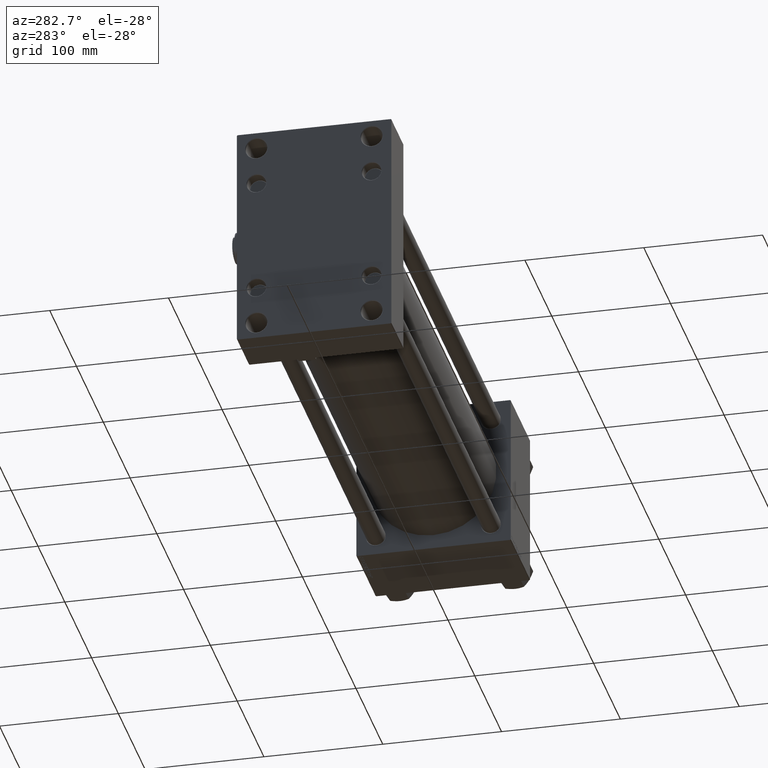
[diagram: clean part render]
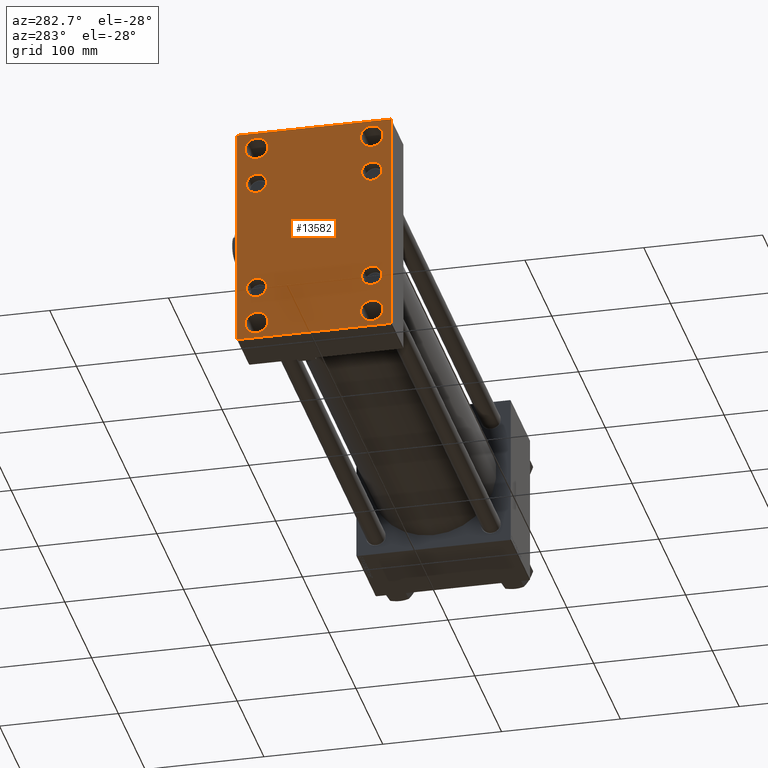
[diagram: same view with one face highlighted and labeled with its STEP entity id]
A machine part, auxiliary view. The second image highlights one B-rep face of the part: STEP entity #13582.
In plain terms, the highlighted planar face has unit normal (-1, 0, 0).
Its self-contained STEP definition (entity closure, byte-faithful):
#382 = CARTESIAN_POINT ( 'NONE',  ( 0.000000000000000000, 48.45000000000000995, 56.94999999999999574 ) ) ;
#688 = AXIS2_PLACEMENT_3D ( 'NONE', #50420, #50963, #16377 ) ;
#1030 = CARTESIAN_POINT ( 'NONE',  ( 0.000000000000000000, 64.50000000000002842, -95.00000000000002842 ) ) ;
#1153 = CIRCLE ( 'NONE', #32120, 8.499999999999980460 ) ;
#1318 = ORIENTED_EDGE ( 'NONE', *, *, #43432, .T. ) ;
#1344 = CARTESIAN_POINT ( 'NONE',  ( 0.000000000000000000, 65.00000000000002842, 94.99999999999997158 ) ) ;
#1445 = CARTESIAN_POINT ( 'NONE',  ( 0.000000000000000000, -64.49999999999988631, -95.00000000000008527 ) ) ;
#1721 = CARTESIAN_POINT ( 'NONE',  ( 0.000000000000000000, -64.99999999999998579, -94.50000000000004263 ) ) ;
#2082 = EDGE_CURVE ( 'NONE', #53615, #8556, #18777, .T. ) ;
#2118 = CIRCLE ( 'NONE', #6569, 9.499999999999896971 ) ;
#2193 = AXIS2_PLACEMENT_3D ( 'NONE', #26166, #33661, #51388 ) ;
#2512 = CARTESIAN_POINT ( 'NONE',  ( 0.000000000000000000, 48.45000000000000995, -39.95000000000003126 ) ) ;
#2588 = ORIENTED_EDGE ( 'NONE', *, *, #25897, .T. ) ;
#2801 = ORIENTED_EDGE ( 'NONE', *, *, #28862, .T. ) ;
#2861 = ORIENTED_EDGE ( 'NONE', *, *, #21218, .F. ) ;
#2901 = EDGE_CURVE ( 'NONE', #53233, #32737, #11734, .T. ) ;
#3055 = DIRECTION ( 'NONE',  ( 0.000000000000000000, -1.000000000000000000, -4.270088556250601699E-16 ) ) ;
#3323 = ORIENTED_EDGE ( 'NONE', *, *, #47860, .T. ) ;
#3642 = EDGE_CURVE ( 'NONE', #39699, #12663, #1153, .T. ) ;
#3644 = EDGE_CURVE ( 'NONE', #12240, #12367, #8241, .T. ) ;
#4142 = EDGE_CURVE ( 'NONE', #48170, #48158, #8247, .T. ) ;
#4210 = PLANE ( 'NONE',  #20888 ) ;
#4649 = CARTESIAN_POINT ( 'NONE',  ( 0.000000000000000000, -48.50000000000000000, 81.00000000000000000 ) ) ;
#5040 = VERTEX_POINT ( 'NONE', #21473 ) ;
#5719 = CIRCLE ( 'NONE', #2193, 9.499999999999896971 ) ;
#5873 = ORIENTED_EDGE ( 'NONE', *, *, #2082, .T. ) ;
#5982 = VECTOR ( 'NONE', #26096, 1000.000000000000000 ) ;
#6167 = EDGE_CURVE ( 'NONE', #8556, #53615, #2118, .T. ) ;
#6254 = DIRECTION ( 'NONE',  ( 1.000000000000000000, -0.000000000000000000, 0.000000000000000000 ) ) ;
#6510 = ORIENTED_EDGE ( 'NONE', *, *, #6167, .T. ) ;
#6569 = AXIS2_PLACEMENT_3D ( 'NONE', #40299, #36682, #53313 ) ;
#6757 = CIRCLE ( 'NONE', #47557, 9.499999999999896971 ) ;
#6786 = VERTEX_POINT ( 'NONE', #37089 ) ;
#6838 = DIRECTION ( 'NONE',  ( 1.000000000000000000, -0.000000000000000000, 0.000000000000000000 ) ) ;
#7245 = CARTESIAN_POINT ( 'NONE',  ( 0.000000000000000000, 48.45000000000000995, -48.45000000000001705 ) ) ;
#7332 = CARTESIAN_POINT ( 'NONE',  ( 0.000000000000000000, -64.99999999999998579, 94.99999999999995737 ) ) ;
#7781 = ORIENTED_EDGE ( 'NONE', *, *, #12973, .T. ) ;
#8241 = CIRCLE ( 'NONE', #53375, 8.499999999999980460 ) ;
#8247 = LINE ( 'NONE', #42027, #33886 ) ;
#8463 = DIRECTION ( 'NONE',  ( 1.000000000000000000, -0.000000000000000000, 0.000000000000000000 ) ) ;
#8556 = VERTEX_POINT ( 'NONE', #39216 ) ;
#8569 = CARTESIAN_POINT ( 'NONE',  ( 0.000000000000000000, -48.44999999999999574, 56.95000000000000995 ) ) ;
#8650 = FACE_BOUND ( 'NONE', #50332, .T. ) ;
#8685 = LINE ( 'NONE', #43001, #5982 ) ;
#8836 = ORIENTED_EDGE ( 'NONE', *, *, #37484, .T. ) ;
#9531 = CARTESIAN_POINT ( 'NONE',  ( 0.000000000000000000, 48.45000000000000995, 39.95000000000003126 ) ) ;
#9697 = DIRECTION ( 'NONE',  ( 0.000000000000000000, 0.000000000000000000, 1.000000000000000000 ) ) ;
#10176 = CARTESIAN_POINT ( 'NONE',  ( 0.000000000000000000, -48.44999999999999574, -56.95000000000000995 ) ) ;
#10445 = VERTEX_POINT ( 'NONE', #41292 ) ;
#10702 = VERTEX_POINT ( 'NONE', #53685 ) ;
#10725 = CARTESIAN_POINT ( 'NONE',  ( 0.000000000000000000, -48.44999999999999574, -39.95000000000004547 ) ) ;
#10851 = DIRECTION ( 'NONE',  ( 0.000000000000000000, 0.000000000000000000, 1.000000000000000000 ) ) ;
#11006 = CIRCLE ( 'NONE', #33127, 8.499999999999980460 ) ;
#11133 = DIRECTION ( 'NONE',  ( 0.000000000000000000, 0.000000000000000000, 1.000000000000000000 ) ) ;
#11280 = CIRCLE ( 'NONE', #29822, 9.499999999999896971 ) ;
#11522 = CARTESIAN_POINT ( 'NONE',  ( 0.000000000000000000, 48.50000000000000000, 81.00000000000000000 ) ) ;
#11710 = ORIENTED_EDGE ( 'NONE', *, *, #4142, .T. ) ;
#11734 = CIRCLE ( 'NONE', #23238, 8.499999999999980460 ) ;
#11781 = DIRECTION ( 'NONE',  ( 1.000000000000000000, -0.000000000000000000, 0.000000000000000000 ) ) ;
#11940 = ORIENTED_EDGE ( 'NONE', *, *, #13670, .T. ) ;
#11982 = ORIENTED_EDGE ( 'NONE', *, *, #33273, .T. ) ;
#12159 = CIRCLE ( 'NONE', #50162, 9.499999999999896971 ) ;
#12240 = VERTEX_POINT ( 'NONE', #10176 ) ;
#12367 = VERTEX_POINT ( 'NONE', #10725 ) ;
#12503 = DIRECTION ( 'NONE',  ( -1.000000000000000000, 0.000000000000000000, -0.000000000000000000 ) ) ;
#12619 = VECTOR ( 'NONE', #3055, 1000.000000000000000 ) ;
#12663 = VERTEX_POINT ( 'NONE', #2512 ) ;
#12781 = FACE_BOUND ( 'NONE', #21241, .T. ) ;
#12973 = EDGE_CURVE ( 'NONE', #13221, #39363, #12159, .T. ) ;
#13068 = FACE_BOUND ( 'NONE', #13527, .T. ) ;
#13221 = VERTEX_POINT ( 'NONE', #40609 ) ;
#13336 = FACE_BOUND ( 'NONE', #27647, .T. ) ;
#13527 = EDGE_LOOP ( 'NONE', ( #3323, #17146 ) ) ;
#13582 = ADVANCED_FACE ( 'NONE', ( #13336, #13068, #37435, #25524, #16423, #8650, #41878, #12781, #42968 ), #4210, .T. ) ;
#13670 = EDGE_CURVE ( 'NONE', #26255, #27963, #6757, .T. ) ;
#14376 = ORIENTED_EDGE ( 'NONE', *, *, #2901, .T. ) ;
#14688 = VECTOR ( 'NONE', #44174, 1000.000000000000114 ) ;
#14991 = EDGE_CURVE ( 'NONE', #53777, #6786, #34161, .T. ) ;
#15233 = DIRECTION ( 'NONE',  ( 0.000000000000000000, -1.000000000000000000, -1.067522139062650425E-16 ) ) ;
#15291 = DIRECTION ( 'NONE',  ( 1.000000000000000000, -0.000000000000000000, 0.000000000000000000 ) ) ;
#15303 = ORIENTED_EDGE ( 'NONE', *, *, #14991, .T. ) ;
#15418 = DIRECTION ( 'NONE',  ( 0.000000000000000000, 0.000000000000000000, 1.000000000000000000 ) ) ;
#16229 = CIRCLE ( 'NONE', #39211, 8.499999999999980460 ) ;
#16233 = DIRECTION ( 'NONE',  ( 0.000000000000000000, 0.000000000000000000, 1.000000000000000000 ) ) ;
#16377 = DIRECTION ( 'NONE',  ( 0.000000000000000000, 0.000000000000000000, 1.000000000000000000 ) ) ;
#16423 = FACE_BOUND ( 'NONE', #21016, .T. ) ;
#16946 = CARTESIAN_POINT ( 'NONE',  ( 0.000000000000000000, 0.000000000000000000, 0.000000000000000000 ) ) ;
#17146 = ORIENTED_EDGE ( 'NONE', *, *, #36102, .T. ) ;
#17976 = EDGE_CURVE ( 'NONE', #6786, #53777, #47932, .T. ) ;
#18544 = DIRECTION ( 'NONE',  ( 0.000000000000000000, 0.000000000000000000, -1.000000000000000000 ) ) ;
#18777 = CIRCLE ( 'NONE', #53297, 9.499999999999896971 ) ;
#18807 = EDGE_LOOP ( 'NONE', ( #23230, #2801, #32322, #11710, #2861, #39985, #29483, #1318 ) ) ;
#18992 = DIRECTION ( 'NONE',  ( 0.000000000000000000, 0.000000000000000000, 1.000000000000000000 ) ) ;
#20352 = EDGE_CURVE ( 'NONE', #32737, #53233, #16229, .T. ) ;
#20566 = DIRECTION ( 'NONE',  ( -0.000000000000000000, 0.000000000000000000, 1.000000000000000000 ) ) ;
#20888 = AXIS2_PLACEMENT_3D ( 'NONE', #16946, #12503, #20566 ) ;
#21016 = EDGE_LOOP ( 'NONE', ( #15303, #35414 ) ) ;
#21218 = EDGE_CURVE ( 'NONE', #53145, #48158, #45544, .T. ) ;
#21241 = EDGE_LOOP ( 'NONE', ( #52941, #14376 ) ) ;
#21473 = CARTESIAN_POINT ( 'NONE',  ( 0.000000000000000000, 64.50000000000000000, 94.99999999999997158 ) ) ;
#21552 = DIRECTION ( 'NONE',  ( 1.000000000000000000, -0.000000000000000000, 0.000000000000000000 ) ) ;
#22130 = LINE ( 'NONE', #1344, #49824 ) ;
#22584 = CARTESIAN_POINT ( 'NONE',  ( 0.000000000000000000, -48.44999999999999574, 48.45000000000003126 ) ) ;
#23229 = EDGE_CURVE ( 'NONE', #45934, #48170, #23571, .T. ) ;
#23230 = ORIENTED_EDGE ( 'NONE', *, *, #23609, .T. ) ;
#23238 = AXIS2_PLACEMENT_3D ( 'NONE', #45869, #6838, #16233 ) ;
#23571 = LINE ( 'NONE', #54277, #12619 ) ;
#23583 = DIRECTION ( 'NONE',  ( 1.000000000000000000, -0.000000000000000000, 0.000000000000000000 ) ) ;
#23609 = EDGE_CURVE ( 'NONE', #42738, #34965, #22130, .T. ) ;
#24168 = ORIENTED_EDGE ( 'NONE', *, *, #3642, .T. ) ;
#24252 = DIRECTION ( 'NONE',  ( 0.000000000000000000, 0.7071067811865672237, -0.7071067811865279218 ) ) ;
#24564 = CIRCLE ( 'NONE', #38687, 8.499999999999980460 ) ;
#25524 = FACE_BOUND ( 'NONE', #36798, .T. ) ;
#25897 = EDGE_CURVE ( 'NONE', #12367, #12240, #11006, .T. ) ;
#26096 = DIRECTION ( 'NONE',  ( -0.000000000000000000, 0.7071067811865573427, 0.7071067811865378028 ) ) ;
#26166 = CARTESIAN_POINT ( 'NONE',  ( 0.000000000000000000, -48.50000000000000000, -81.00000000000001421 ) ) ;
#26255 = VERTEX_POINT ( 'NONE', #36424 ) ;
#26838 = VECTOR ( 'NONE', #49163, 1000.000000000000000 ) ;
#27109 = CARTESIAN_POINT ( 'NONE',  ( 0.000000000000000000, 79.74999999999818101, 79.75000000000261480 ) ) ;
#27647 = EDGE_LOOP ( 'NONE', ( #5873, #6510 ) ) ;
#27963 = VERTEX_POINT ( 'NONE', #44419 ) ;
#28862 = EDGE_CURVE ( 'NONE', #34965, #45934, #48328, .T. ) ;
#28992 = EDGE_LOOP ( 'NONE', ( #42685, #11940 ) ) ;
#29483 = ORIENTED_EDGE ( 'NONE', *, *, #37695, .F. ) ;
#29800 = DIRECTION ( 'NONE',  ( 1.000000000000000000, -0.000000000000000000, 0.000000000000000000 ) ) ;
#29822 = AXIS2_PLACEMENT_3D ( 'NONE', #4649, #21552, #30122 ) ;
#30122 = DIRECTION ( 'NONE',  ( 0.000000000000000000, 0.000000000000000000, 1.000000000000000000 ) ) ;
#30653 = AXIS2_PLACEMENT_3D ( 'NONE', #35432, #39595, #9697 ) ;
#31108 = AXIS2_PLACEMENT_3D ( 'NONE', #22584, #6254, #18992 ) ;
#32120 = AXIS2_PLACEMENT_3D ( 'NONE', #7245, #15291, #10851 ) ;
#32322 = ORIENTED_EDGE ( 'NONE', *, *, #23229, .T. ) ;
#32432 = CARTESIAN_POINT ( 'NONE',  ( 0.000000000000000000, 48.45000000000000995, -48.45000000000001705 ) ) ;
#32737 = VERTEX_POINT ( 'NONE', #382 ) ;
#32886 = CARTESIAN_POINT ( 'NONE',  ( 0.000000000000000000, 48.50000000000000000, -81.00000000000001421 ) ) ;
#33127 = AXIS2_PLACEMENT_3D ( 'NONE', #42275, #29800, #54746 ) ;
#33273 = EDGE_CURVE ( 'NONE', #12663, #39699, #24564, .T. ) ;
#33648 = EDGE_CURVE ( 'NONE', #53145, #10702, #8685, .T. ) ;
#33661 = DIRECTION ( 'NONE',  ( 1.000000000000000000, -0.000000000000000000, 0.000000000000000000 ) ) ;
#33882 = CARTESIAN_POINT ( 'NONE',  ( 0.000000000000000000, 65.00000000000002842, 94.49999999999997158 ) ) ;
#33886 = VECTOR ( 'NONE', #46744, 1000.000000000000000 ) ;
#34161 = CIRCLE ( 'NONE', #30653, 8.499999999999980460 ) ;
#34448 = CARTESIAN_POINT ( 'NONE',  ( 0.000000000000000000, -64.99999999999998579, 94.49999999999992895 ) ) ;
#34475 = CARTESIAN_POINT ( 'NONE',  ( 0.000000000000000000, 79.75000000000002842, -79.75000000000002842 ) ) ;
#34965 = VERTEX_POINT ( 'NONE', #36007 ) ;
#35031 = DIRECTION ( 'NONE',  ( 1.000000000000000000, -0.000000000000000000, 0.000000000000000000 ) ) ;
#35313 = CARTESIAN_POINT ( 'NONE',  ( 0.000000000000000000, -48.50000000000000000, 81.00000000000000000 ) ) ;
#35414 = ORIENTED_EDGE ( 'NONE', *, *, #17976, .T. ) ;
#35432 = CARTESIAN_POINT ( 'NONE',  ( 0.000000000000000000, -48.44999999999999574, 48.45000000000003126 ) ) ;
#35988 = CARTESIAN_POINT ( 'NONE',  ( 0.000000000000000000, 65.00000000000002842, 94.99999999999997158 ) ) ;
#36007 = CARTESIAN_POINT ( 'NONE',  ( 0.000000000000000000, 65.00000000000002842, -94.50000000000002842 ) ) ;
#36102 = EDGE_CURVE ( 'NONE', #10445, #43308, #11280, .T. ) ;
#36424 = CARTESIAN_POINT ( 'NONE',  ( 0.000000000000000000, -48.50000000000000000, -90.49999999999991473 ) ) ;
#36575 = DIRECTION ( 'NONE',  ( 0.000000000000000000, 0.000000000000000000, 1.000000000000000000 ) ) ;
#36582 = DIRECTION ( 'NONE',  ( 1.000000000000000000, -0.000000000000000000, 0.000000000000000000 ) ) ;
#36673 = CIRCLE ( 'NONE', #51705, 9.499999999999896971 ) ;
#36682 = DIRECTION ( 'NONE',  ( 1.000000000000000000, -0.000000000000000000, 0.000000000000000000 ) ) ;
#36798 = EDGE_LOOP ( 'NONE', ( #8836, #7781 ) ) ;
#37089 = CARTESIAN_POINT ( 'NONE',  ( 0.000000000000000000, -48.44999999999999574, 39.95000000000004547 ) ) ;
#37435 = FACE_BOUND ( 'NONE', #28992, .T. ) ;
#37484 = EDGE_CURVE ( 'NONE', #39363, #13221, #51119, .T. ) ;
#37695 = EDGE_CURVE ( 'NONE', #5040, #10702, #53718, .T. ) ;
#37982 = DIRECTION ( 'NONE',  ( 0.000000000000000000, 0.000000000000000000, 1.000000000000000000 ) ) ;
#38070 = DIRECTION ( 'NONE',  ( 0.000000000000000000, 0.000000000000000000, 1.000000000000000000 ) ) ;
#38687 = AXIS2_PLACEMENT_3D ( 'NONE', #32432, #23583, #36575 ) ;
#38769 = CARTESIAN_POINT ( 'NONE',  ( 0.000000000000000000, 48.50000000000000000, -71.50000000000011369 ) ) ;
#39211 = AXIS2_PLACEMENT_3D ( 'NONE', #46398, #8463, #38070 ) ;
#39216 = CARTESIAN_POINT ( 'NONE',  ( 0.000000000000000000, 48.50000000000000000, 71.50000000000009948 ) ) ;
#39363 = VERTEX_POINT ( 'NONE', #38769 ) ;
#39595 = DIRECTION ( 'NONE',  ( 1.000000000000000000, -0.000000000000000000, 0.000000000000000000 ) ) ;
#39699 = VERTEX_POINT ( 'NONE', #52772 ) ;
#39985 = ORIENTED_EDGE ( 'NONE', *, *, #33648, .T. ) ;
#40201 = VECTOR ( 'NONE', #24252, 1000.000000000000000 ) ;
#40299 = CARTESIAN_POINT ( 'NONE',  ( 0.000000000000000000, 48.50000000000000000, 81.00000000000000000 ) ) ;
#40484 = CARTESIAN_POINT ( 'NONE',  ( 0.000000000000000000, -48.44999999999999574, -48.45000000000003126 ) ) ;
#40609 = CARTESIAN_POINT ( 'NONE',  ( 0.000000000000000000, 48.50000000000000000, -90.49999999999991473 ) ) ;
#40726 = CARTESIAN_POINT ( 'NONE',  ( 0.000000000000000000, 48.50000000000000000, 90.49999999999990052 ) ) ;
#41292 = CARTESIAN_POINT ( 'NONE',  ( 0.000000000000000000, -48.50000000000000000, 71.50000000000009948 ) ) ;
#41878 = FACE_BOUND ( 'NONE', #44747, .T. ) ;
#42027 = CARTESIAN_POINT ( 'NONE',  ( 0.000000000000000000, -79.74999999999639044, -79.75000000000524381 ) ) ;
#42275 = CARTESIAN_POINT ( 'NONE',  ( 0.000000000000000000, -48.44999999999999574, -48.45000000000003126 ) ) ;
#42685 = ORIENTED_EDGE ( 'NONE', *, *, #47749, .T. ) ;
#42738 = VERTEX_POINT ( 'NONE', #33882 ) ;
#42968 = FACE_OUTER_BOUND ( 'NONE', #18807, .T. ) ;
#43001 = CARTESIAN_POINT ( 'NONE',  ( -0.000000000000000000, -79.74999999999906208, 79.75000000000126477 ) ) ;
#43308 = VERTEX_POINT ( 'NONE', #50939 ) ;
#43432 = EDGE_CURVE ( 'NONE', #5040, #42738, #45303, .T. ) ;
#44051 = VECTOR ( 'NONE', #15233, 1000.000000000000000 ) ;
#44174 = DIRECTION ( 'NONE',  ( -0.000000000000000000, -0.7071067811865474617, -0.7071067811865474617 ) ) ;
#44419 = CARTESIAN_POINT ( 'NONE',  ( 0.000000000000000000, -48.50000000000000000, -71.50000000000011369 ) ) ;
#44747 = EDGE_LOOP ( 'NONE', ( #11982, #24168 ) ) ;
#45303 = LINE ( 'NONE', #27109, #40201 ) ;
#45544 = LINE ( 'NONE', #7332, #26838 ) ;
#45645 = DIRECTION ( 'NONE',  ( 0.000000000000000000, 0.000000000000000000, 1.000000000000000000 ) ) ;
#45869 = CARTESIAN_POINT ( 'NONE',  ( 0.000000000000000000, 48.45000000000000995, 48.45000000000001705 ) ) ;
#45920 = DIRECTION ( 'NONE',  ( 1.000000000000000000, -0.000000000000000000, 0.000000000000000000 ) ) ;
#45934 = VERTEX_POINT ( 'NONE', #1030 ) ;
#46398 = CARTESIAN_POINT ( 'NONE',  ( 0.000000000000000000, 48.45000000000000995, 48.45000000000001705 ) ) ;
#46744 = DIRECTION ( 'NONE',  ( 0.000000000000000000, -0.7071067811865867636, 0.7071067811865081598 ) ) ;
#47557 = AXIS2_PLACEMENT_3D ( 'NONE', #50731, #50460, #37982 ) ;
#47749 = EDGE_CURVE ( 'NONE', #27963, #26255, #5719, .T. ) ;
#47860 = EDGE_CURVE ( 'NONE', #43308, #10445, #36673, .T. ) ;
#47932 = CIRCLE ( 'NONE', #31108, 8.499999999999980460 ) ;
#48158 = VERTEX_POINT ( 'NONE', #1721 ) ;
#48170 = VERTEX_POINT ( 'NONE', #1445 ) ;
#48328 = LINE ( 'NONE', #34475, #14688 ) ;
#49163 = DIRECTION ( 'NONE',  ( 0.000000000000000000, 0.000000000000000000, -1.000000000000000000 ) ) ;
#49824 = VECTOR ( 'NONE', #18544, 1000.000000000000000 ) ;
#50162 = AXIS2_PLACEMENT_3D ( 'NONE', #32886, #45920, #45645 ) ;
#50332 = EDGE_LOOP ( 'NONE', ( #2588, #51792 ) ) ;
#50420 = CARTESIAN_POINT ( 'NONE',  ( 0.000000000000000000, 48.50000000000000000, -81.00000000000001421 ) ) ;
#50460 = DIRECTION ( 'NONE',  ( 1.000000000000000000, -0.000000000000000000, 0.000000000000000000 ) ) ;
#50731 = CARTESIAN_POINT ( 'NONE',  ( 0.000000000000000000, -48.50000000000000000, -81.00000000000001421 ) ) ;
#50939 = CARTESIAN_POINT ( 'NONE',  ( 0.000000000000000000, -48.50000000000000000, 90.49999999999990052 ) ) ;
#50963 = DIRECTION ( 'NONE',  ( 1.000000000000000000, -0.000000000000000000, 0.000000000000000000 ) ) ;
#51119 = CIRCLE ( 'NONE', #688, 9.499999999999896971 ) ;
#51388 = DIRECTION ( 'NONE',  ( 0.000000000000000000, 0.000000000000000000, 1.000000000000000000 ) ) ;
#51705 = AXIS2_PLACEMENT_3D ( 'NONE', #35313, #35031, #51944 ) ;
#51792 = ORIENTED_EDGE ( 'NONE', *, *, #3644, .T. ) ;
#51944 = DIRECTION ( 'NONE',  ( 0.000000000000000000, 0.000000000000000000, 1.000000000000000000 ) ) ;
#52772 = CARTESIAN_POINT ( 'NONE',  ( 0.000000000000000000, 48.45000000000000995, -56.94999999999999574 ) ) ;
#52941 = ORIENTED_EDGE ( 'NONE', *, *, #20352, .T. ) ;
#53145 = VERTEX_POINT ( 'NONE', #34448 ) ;
#53233 = VERTEX_POINT ( 'NONE', #9531 ) ;
#53297 = AXIS2_PLACEMENT_3D ( 'NONE', #11522, #11781, #15418 ) ;
#53313 = DIRECTION ( 'NONE',  ( 0.000000000000000000, 0.000000000000000000, 1.000000000000000000 ) ) ;
#53375 = AXIS2_PLACEMENT_3D ( 'NONE', #40484, #36582, #11133 ) ;
#53615 = VERTEX_POINT ( 'NONE', #40726 ) ;
#53685 = CARTESIAN_POINT ( 'NONE',  ( 0.000000000000000000, -64.49999999999994316, 94.99999999999995737 ) ) ;
#53718 = LINE ( 'NONE', #35988, #44051 ) ;
#53777 = VERTEX_POINT ( 'NONE', #8569 ) ;
#54277 = CARTESIAN_POINT ( 'NONE',  ( 0.000000000000000000, 65.00000000000002842, -95.00000000000002842 ) ) ;
#54746 = DIRECTION ( 'NONE',  ( 0.000000000000000000, 0.000000000000000000, 1.000000000000000000 ) ) ;